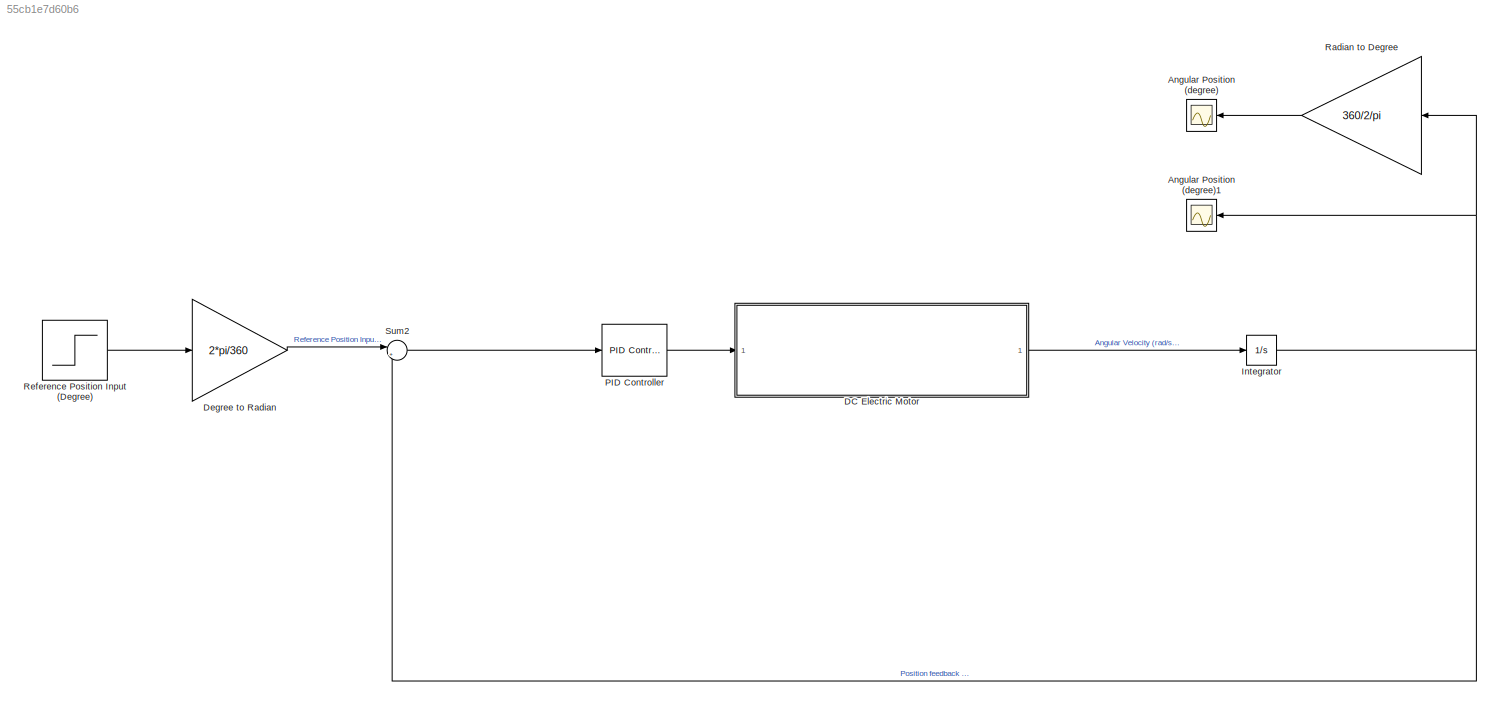
MODEL slx_55cb1e7d60b6
KIND model
CONFIG AbsTol = auto
CONFIG EnableMultiTasking = off
CONFIG FixedStep = auto
CONFIG MaxStep = auto
CONFIG MinStep = auto
CONFIG RelTol = 1e-3
CONFIG SampleTimeConstraint = Unconstrained
CONFIG Solver = VariableStepAuto
CONFIG SolverName = VariableStepAuto
CONFIG StartTime = 0.0
CONFIG StopTime = 4
BLOCK [Scope] Angular Position (degree)
  NumInputPorts = 1
  Ports = [1]
  ScopeSpecificationString = Simulink.scopes.TimeScopeBlockCfg('CurrentConfiguration', extmgr.ConfigurationSet(extmgr.Configuration('Core','General UI',true),extmgr.Configuration('Core','Source UI',true),extmgr.Configuration('Sources','WiredSimulink',true),extmgr.Configuration('Visuals','Time Domain',true,'SerializedDisplays',{struct('MinYLimReal','-0.88968','MaxYLimReal','213.70107','YLabelReal','Angular Position of Output S...<+1526ch>
BLOCK [Scope] Angular Position (degree)1
  NumInputPorts = 1
  Ports = [1]
  ScopeSpecificationString = Simulink.scopes.TimeScopeBlockCfg('CurrentConfiguration', extmgr.ConfigurationSet(extmgr.Configuration('Core','General UI',true),extmgr.Configuration('Core','Source UI',true),extmgr.Configuration('Sources','WiredSimulink',true,'DataLoggingVariableName','ScopeData1'),extmgr.Configuration('Visuals','Time Domain',true,'SerializedDisplays',{struct('MinYLimReal','3.55409','MaxYLimReal','3.66476','YLabe...<+1570ch>
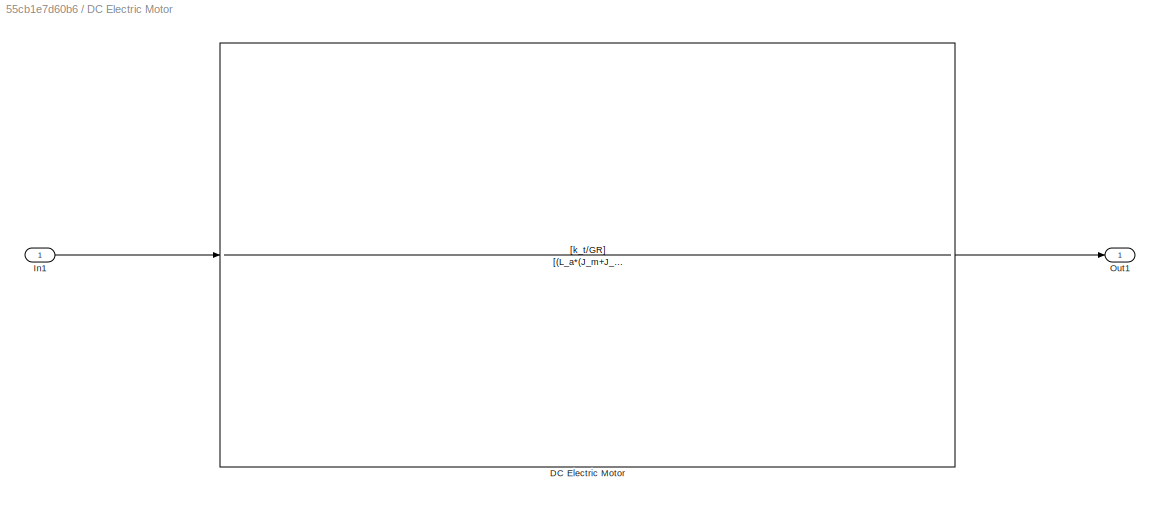
BLOCK [SubSystem] DC Electric Motor
  Ports = [1, 1]
  RequestExecContextInheritance = off
  Variant = off
BLOCK [TransferFcn] DC Electric Motor/DC Electric Motor
  Denominator = [(L_a*(J_m+J_l*(m_l)^2)) (L_a*(D_m+D_d*(m_d)^2)+R_a*(J_m+J_l*(m_l)^2)) (R_a*(D_m+D_d*(m_d)^2)+k_t*k_e*(1/GR)^2)]
  Numerator = [k_t/GR]
BLOCK [Inport] DC Electric Motor/In1
  IconDisplay = Port number
BLOCK [Outport] DC Electric Motor/Out1
  IconDisplay = Port number
BLOCK [Gain] Degree to Radian
  Gain = 2*pi/360
  OutDataTypeStr = Inherit: Inherit via internal rule
  ParamDataTypeStr = Inherit: Inherit via internal rule
  SaturateOnIntegerOverflow = off
BLOCK [Integrator] Integrator
  Ports = [1, 1]
BLOCK [Reference] PID Controller  REF=simulink/Continuous/PID Controller
  Ports = [1, 1]
  SourceBlock = simulink/Continuous/PID Controller
  SourceProductBaseCode = SL
  SourceProductName = Simulink
  SourceType = PID 1dof
BLOCK [Gain] Radian to Degree
  Gain = 360/2/pi
  OutDataTypeStr = Inherit: Inherit via internal rule
  ParamDataTypeStr = Inherit: Inherit via internal rule
  SaturateOnIntegerOverflow = off
BLOCK [Step] Reference Position Input (Degree)
  After = 200
  Before = 200
  SampleTime = 0
  Time = 0
BLOCK [Sum] Sum2
  IconShape = round
  InputSameDT = off
  Inputs = |+-
  OutDataTypeStr = Inherit: Inherit via internal rule
  Ports = [2, 1]
  SaturateOnIntegerOverflow = off
LINE DC Electric Motor/DC Electric Motor:1 -> DC Electric Motor/Out1:1
LINE DC Electric Motor/In1:1 -> DC Electric Motor/DC Electric Motor:1
LINE DC Electric Motor:1 -> Integrator:1
LINE Degree to Radian:1 -> Sum2:1
NET Integrator:1 -> Angular Position (degree)1:1, Radian to Degree:1, Sum2:2
LINE PID Controller:1 -> DC Electric Motor:1
LINE Radian to Degree:1 -> Angular Position (degree):1
LINE Reference Position Input (Degree):1 -> Degree to Radian:1
LINE Sum2:1 -> PID Controller:1
note: NET lines group one-source signal fan-out (src -> all destinations, sorted); 1:1 wires keep LINE
